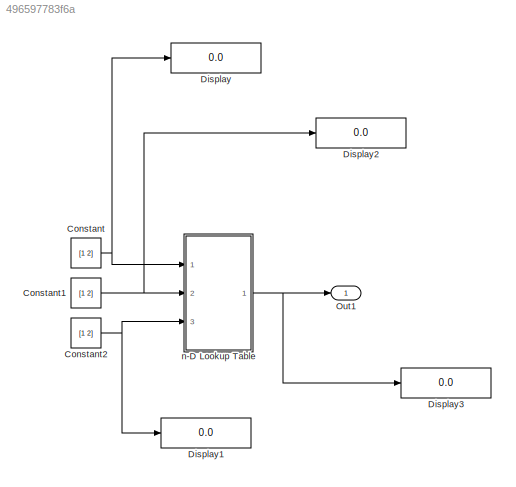
MODEL slx_496597783f6a
KIND model
CONFIG AbsTol = auto
CONFIG EnableMultiTasking = on
CONFIG FixedStep = 0.200000
CONFIG MaxStep = auto
CONFIG MinStep = auto
CONFIG RelTol = 1e-3
CONFIG SampleTimeConstraint = Unconstrained
CONFIG Solver = FixedStepDiscrete
CONFIG SolverName = FixedStepDiscrete
CONFIG StartTime = 0.0
CONFIG StopTime = 10.0
BLOCK [Constant] Constant
  Value = [1 2]
BLOCK [Constant] Constant1
  Value = [1 2]
BLOCK [Constant] Constant2
  Value = [1 2]
BLOCK [Display] Display
  Decimation = 1
  Ports = [1]
BLOCK [Display] Display1
  Decimation = 1
  Ports = [1]
BLOCK [Display] Display2
  Decimation = 1
  Ports = [1]
BLOCK [Display] Display3
  Decimation = 1
  Ports = [1]
BLOCK [Outport] Out1
  IconDisplay = Port number
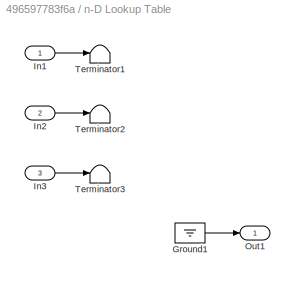
BLOCK [SubSystem] n-D Lookup Table
  Description = Replaced Block
  Ports = [3, 1]
  RequestExecContextInheritance = off
  Variant = off
BLOCK [Ground] n-D Lookup Table/Ground1
BLOCK [Inport] n-D Lookup Table/In1
  IconDisplay = Port number
BLOCK [Inport] n-D Lookup Table/In2
  IconDisplay = Port number
  Port = 2
BLOCK [Inport] n-D Lookup Table/In3
  IconDisplay = Port number
  Port = 3
BLOCK [Outport] n-D Lookup Table/Out1
  IconDisplay = Port number
BLOCK [Terminator] n-D Lookup Table/Terminator1
BLOCK [Terminator] n-D Lookup Table/Terminator2
BLOCK [Terminator] n-D Lookup Table/Terminator3
NET Constant1:1 -> Display2:1, n-D Lookup Table:2
NET Constant2:1 -> Display1:1, n-D Lookup Table:3
NET Constant:1 -> Display:1, n-D Lookup Table:1
LINE n-D Lookup Table/Ground1:1 -> n-D Lookup Table/Out1:1
LINE n-D Lookup Table/In1:1 -> n-D Lookup Table/Terminator1:1
LINE n-D Lookup Table/In2:1 -> n-D Lookup Table/Terminator2:1
LINE n-D Lookup Table/In3:1 -> n-D Lookup Table/Terminator3:1
NET n-D Lookup Table:1 -> Display3:1, Out1:1
note: NET lines group one-source signal fan-out (src -> all destinations, sorted); 1:1 wires keep LINE
